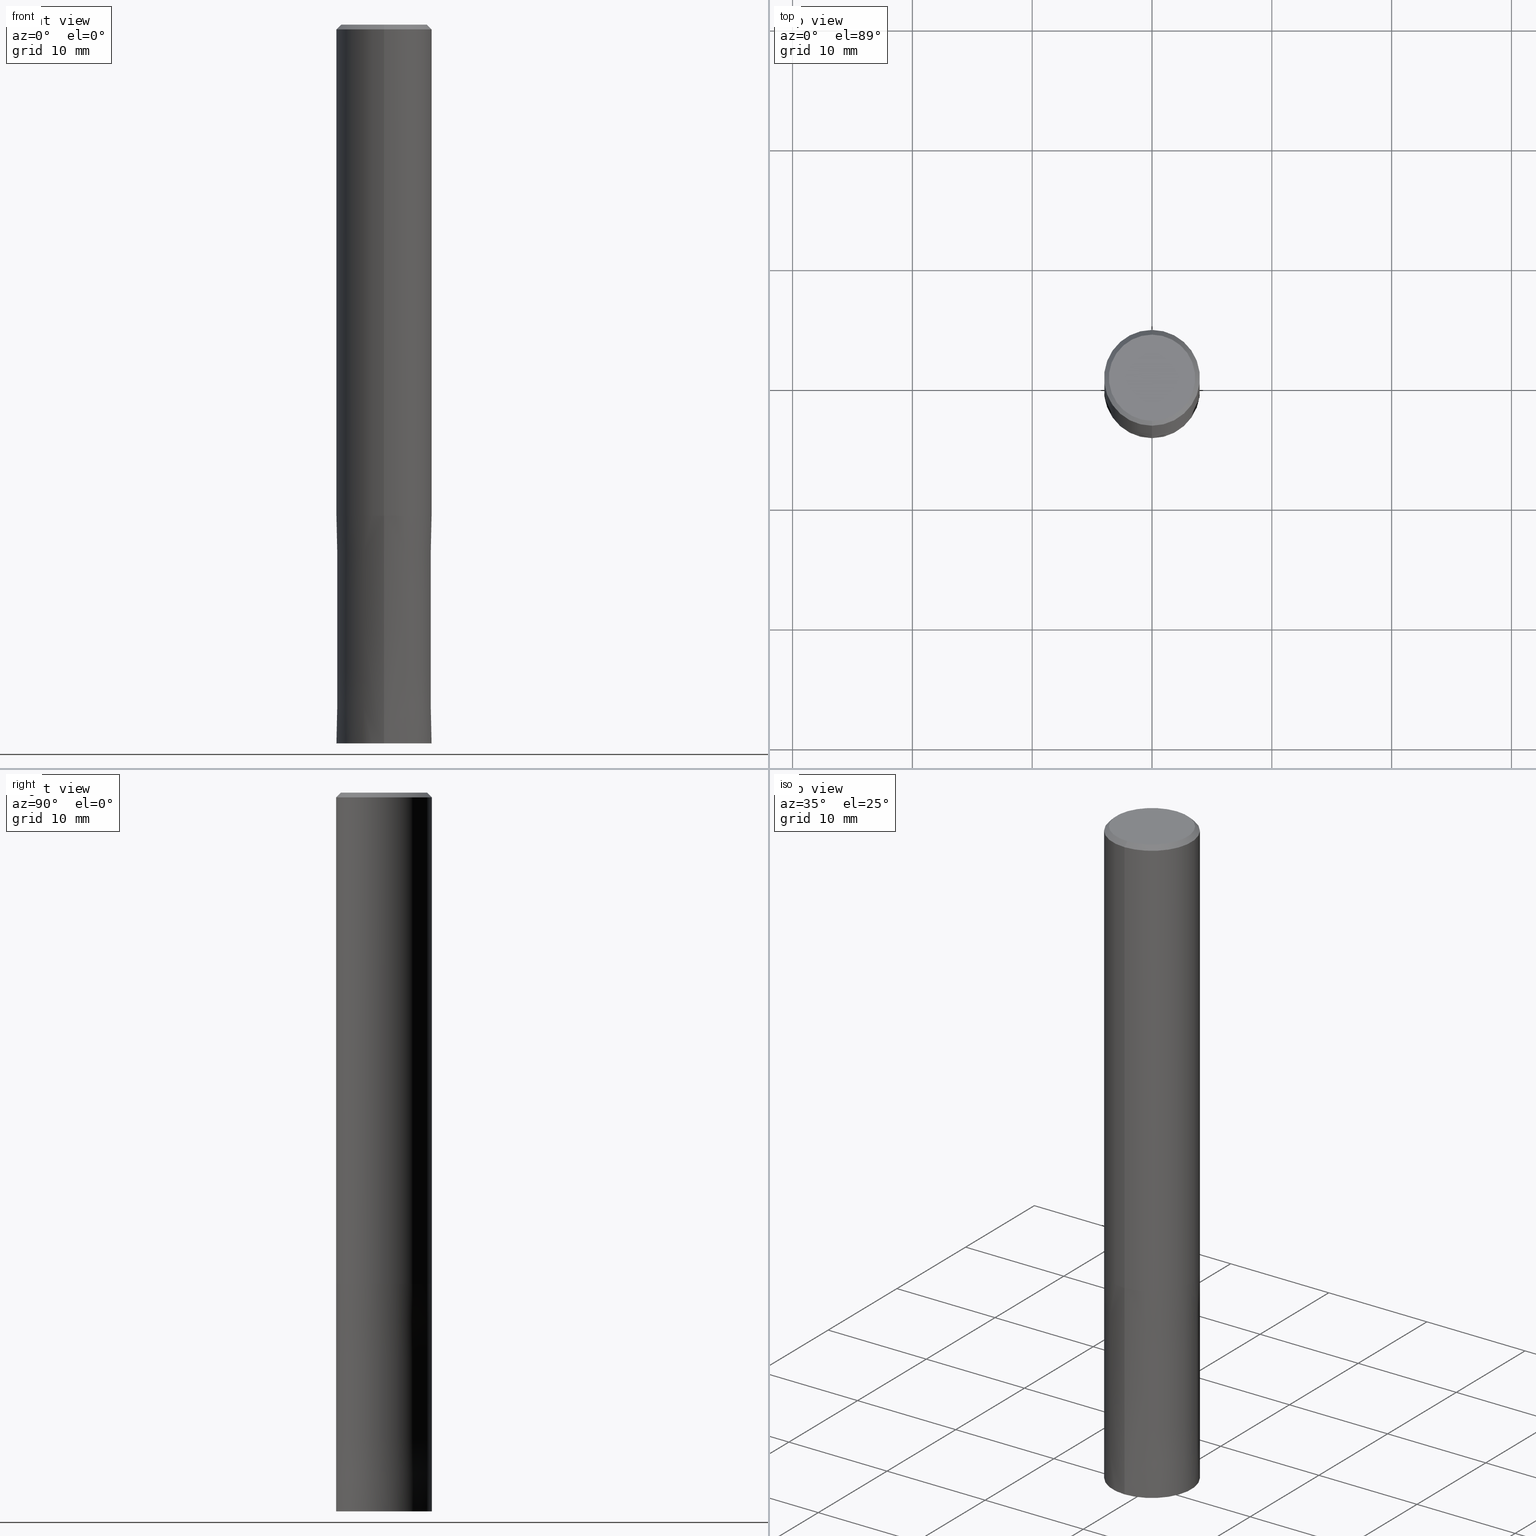
[diagram: canonical four-view strip — front | top / right | iso, engineering-drawing reading convention]
A machine part, canonical four-view strip (front | top / right | iso — engineering-drawing reading convention). The complete STEP part file that produces these views, byte-faithful:
ISO-10303-21;
HEADER;
FILE_DESCRIPTION(('no description'),'unknown implementation level');
FILE_NAME('HMS6080-1900-Huellk.stp','  ',('CIMSOURCE GmbH'),('CADClick - KiM GmbH - www.kimweb.de'),'unknown preprocess','ACIS','unknown authorization');
FILE_SCHEMA(('automotive_design'));
ENDSEC;
DATA;
#1=MECHANICAL_DESIGN_GEOMETRIC_PRESENTATION_REPRESENTATION(' ',(#14,#15,#16,#17,#18,#19,#20,#21,#22,#23,#24,#25,#26,#27,#28,#29,#30,#31,#32,#33,#34,#35,#36,#37,#38,#39,#40,#41,#42,#43,#44,#45,#46,#47,#48,#49,#50,#51,#52,#53,#54,#55,#56,#57,#58,#59,#60,#61,#62,#63,#64,#65,#66,#67,#68,#69,#70,#71,#72,#73,#74,#75,#76),#10);
#2=PRODUCT_DEFINITION_CONTEXT('',#77,'design');
#3=APPLICATION_PROTOCOL_DEFINITION('INTERNATIONAL STANDARD','automotive_design',1994,#77);
#4=PRODUCT_CATEGORY_RELATIONSHIP('NONE','NONE',#78,#79);
#5=SHAPE_DEFINITION_REPRESENTATION(#80,#81);
#6=PRODUCT_DEFINITION_CONTEXT('',#82,'design');
#7=APPLICATION_PROTOCOL_DEFINITION('INTERNATIONAL STANDARD','automotive_design',1994,#82);
#8=PRODUCT_CATEGORY_RELATIONSHIP('NONE','NONE',#83,#84);
#9=SHAPE_DEFINITION_REPRESENTATION(#85,#86);
#10= (GEOMETRIC_REPRESENTATION_CONTEXT(3)GLOBAL_UNCERTAINTY_ASSIGNED_CONTEXT((#89))GLOBAL_UNIT_ASSIGNED_CONTEXT((#91,#92,#93))REPRESENTATION_CONTEXT('NONE','WORKSPACE'));
#14=STYLED_ITEM('',(#95),#96);
#15=STYLED_ITEM('',(#97),#98);
#16=STYLED_ITEM('',(#99),#100);
#17=STYLED_ITEM('',(#101),#102);
#18=STYLED_ITEM('',(#103),#104);
#19=STYLED_ITEM('',(#105),#106);
#20=STYLED_ITEM('',(#107),#108);
#21=STYLED_ITEM('',(#109),#110);
#22=STYLED_ITEM('',(#111),#112);
#23=STYLED_ITEM('',(#113),#114);
#24=STYLED_ITEM('',(#115),#116);
#25=STYLED_ITEM('',(#117),#118);
#26=STYLED_ITEM('',(#119),#120);
#27=STYLED_ITEM('',(#121),#122);
#28=STYLED_ITEM('',(#123),#124);
#29=STYLED_ITEM('',(#125),#126);
#30=STYLED_ITEM('',(#127),#128);
#31=STYLED_ITEM('',(#129),#130);
#32=STYLED_ITEM('',(#131),#132);
#33=STYLED_ITEM('',(#133),#134);
#34=STYLED_ITEM('',(#135),#136);
#35=STYLED_ITEM('',(#137),#138);
#36=STYLED_ITEM('',(#139),#140);
#37=STYLED_ITEM('',(#141),#142);
#38=STYLED_ITEM('',(#143),#144);
#39=STYLED_ITEM('',(#145),#146);
#40=STYLED_ITEM('',(#147),#148);
#41=STYLED_ITEM('',(#149),#150);
#42=STYLED_ITEM('',(#151),#152);
#43=STYLED_ITEM('',(#153),#154);
#44=STYLED_ITEM('',(#155),#156);
#45=STYLED_ITEM('',(#157),#158);
#46=STYLED_ITEM('',(#159),#160);
#47=STYLED_ITEM('',(#161),#162);
#48=STYLED_ITEM('',(#163),#164);
#49=STYLED_ITEM('',(#165),#166);
#50=STYLED_ITEM('',(#167),#168);
#51=STYLED_ITEM('',(#169),#170);
#52=STYLED_ITEM('',(#171),#172);
#53=STYLED_ITEM('',(#173),#174);
#54=STYLED_ITEM('',(#175),#176);
#55=STYLED_ITEM('',(#177),#178);
#56=STYLED_ITEM('',(#179),#180);
#57=STYLED_ITEM('',(#181),#182);
#58=STYLED_ITEM('',(#183),#184);
#59=STYLED_ITEM('',(#185),#186);
#60=STYLED_ITEM('',(#187),#188);
#61=STYLED_ITEM('',(#189),#190);
#62=STYLED_ITEM('',(#191),#192);
#63=STYLED_ITEM('',(#193),#194);
#64=STYLED_ITEM('',(#195),#196);
#65=STYLED_ITEM('',(#197),#198);
#66=STYLED_ITEM('',(#199),#200);
#67=STYLED_ITEM('',(#201),#202);
#68=STYLED_ITEM('',(#203),#204);
#69=STYLED_ITEM('',(#205),#206);
#70=STYLED_ITEM('',(#207),#208);
#71=STYLED_ITEM('',(#209),#210);
#72=STYLED_ITEM('',(#211),#212);
#73=STYLED_ITEM('',(#213),#214);
#74=STYLED_ITEM('',(#215),#216);
#75=STYLED_ITEM('',(#217),#218);
#76=STYLED_ITEM('',(#219),#220);
#77=APPLICATION_CONTEXT(' ');
#78=PRODUCT_CATEGORY('part','NONE');
#79=PRODUCT_RELATED_PRODUCT_CATEGORY('detail',' ',(#221));
#80=PRODUCT_DEFINITION_SHAPE('NONE','NONE',#222);
#81=ADVANCED_BREP_SHAPE_REPRESENTATION('1',(#138,#223),#10);
#82=APPLICATION_CONTEXT(' ');
#83=PRODUCT_CATEGORY('part','NONE');
#84=PRODUCT_RELATED_PRODUCT_CATEGORY('detail',' ',(#224));
#85=PRODUCT_DEFINITION_SHAPE('NONE','NONE',#225);
#86=ADVANCED_BREP_SHAPE_REPRESENTATION('2',(#134,#226),#10);
#89=UNCERTAINTY_MEASURE_WITH_UNIT(LENGTH_MEASURE(1.0E-006),#91,'','');
#91= (CONVERSION_BASED_UNIT('MILLIMETRE',#229)LENGTH_UNIT()NAMED_UNIT(#232));
#92= (NAMED_UNIT(#234)PLANE_ANGLE_UNIT()SI_UNIT($,.RADIAN.));
#93= (NAMED_UNIT(#234)SOLID_ANGLE_UNIT()SI_UNIT($,.STERADIAN.));
#95=PRESENTATION_STYLE_ASSIGNMENT((#240));
#96=EDGE_CURVE('',#158,#166,#241,.T.);
#97=PRESENTATION_STYLE_ASSIGNMENT((#242));
#98=VERTEX_POINT('',#243);
#99=PRESENTATION_STYLE_ASSIGNMENT((#244));
#100=VERTEX_POINT('',#245);
#101=PRESENTATION_STYLE_ASSIGNMENT((#246));
#102=EDGE_CURVE('',#166,#178,#247,.T.);
#103=PRESENTATION_STYLE_ASSIGNMENT((#248));
#104=EDGE_CURVE('',#194,#98,#249,.T.);
#105=PRESENTATION_STYLE_ASSIGNMENT((#250));
#106=EDGE_CURVE('',#200,#212,#251,.T.);
#107=PRESENTATION_STYLE_ASSIGNMENT((#252));
#108=EDGE_CURVE('',#172,#140,#253,.T.);
#109=PRESENTATION_STYLE_ASSIGNMENT((#254));
#110=EDGE_CURVE('',#100,#218,#255,.T.);
#111=PRESENTATION_STYLE_ASSIGNMENT((#256));
#112=EDGE_CURVE('',#172,#218,#257,.T.);
#113=PRESENTATION_STYLE_ASSIGNMENT((#258));
#114=VERTEX_POINT('',#259);
#115=PRESENTATION_STYLE_ASSIGNMENT((#260));
#116=EDGE_CURVE('',#142,#158,#261,.T.);
#117=PRESENTATION_STYLE_ASSIGNMENT((#262));
#118=EDGE_CURVE('',#114,#154,#263,.T.);
#119=PRESENTATION_STYLE_ASSIGNMENT((#264));
#120=VERTEX_POINT('',#265);
#121=PRESENTATION_STYLE_ASSIGNMENT((#266));
#122=ADVANCED_FACE('',(#267),#268,.T.);
#123=PRESENTATION_STYLE_ASSIGNMENT((#269));
#124=ADVANCED_FACE('',(#270,#271),#272,.T.);
#125=PRESENTATION_STYLE_ASSIGNMENT((#273));
#126=EDGE_CURVE('',#178,#162,#274,.T.);
#127=PRESENTATION_STYLE_ASSIGNMENT((#275));
#128=EDGE_CURVE('',#200,#146,#276,.T.);
#129=PRESENTATION_STYLE_ASSIGNMENT((#277));
#130=EDGE_CURVE('',#166,#158,#278,.T.);
#131=PRESENTATION_STYLE_ASSIGNMENT((#279));
#132=EDGE_CURVE('',#210,#212,#280,.T.);
#133=PRESENTATION_STYLE_ASSIGNMENT((#281));
#134=MANIFOLD_SOLID_BREP('2',#282);
#135=PRESENTATION_STYLE_ASSIGNMENT((#283));
#136=EDGE_CURVE('',#140,#172,#284,.T.);
#137=PRESENTATION_STYLE_ASSIGNMENT((#285));
#138=MANIFOLD_SOLID_BREP('1',#286);
#139=PRESENTATION_STYLE_ASSIGNMENT((#287));
#140=VERTEX_POINT('',#288);
#141=PRESENTATION_STYLE_ASSIGNMENT((#289));
#142=VERTEX_POINT('',#290);
#143=PRESENTATION_STYLE_ASSIGNMENT((#291));
#144=ADVANCED_FACE('',(#292),#293,.F.);
#145=PRESENTATION_STYLE_ASSIGNMENT((#294));
#146=VERTEX_POINT('',#295);
#147=PRESENTATION_STYLE_ASSIGNMENT((#296));
#148=EDGE_CURVE('',#100,#140,#297,.T.);
#149=PRESENTATION_STYLE_ASSIGNMENT((#298));
#150=ADVANCED_FACE('',(#299),#300,.T.);
#151=PRESENTATION_STYLE_ASSIGNMENT((#301));
#152=ADVANCED_FACE('',(#302),#303,.T.);
#153=PRESENTATION_STYLE_ASSIGNMENT((#304));
#154=VERTEX_POINT('',#305);
#155=PRESENTATION_STYLE_ASSIGNMENT((#306));
#156=EDGE_CURVE('',#146,#200,#307,.T.);
#157=PRESENTATION_STYLE_ASSIGNMENT((#308));
#158=VERTEX_POINT('',#309);
#159=PRESENTATION_STYLE_ASSIGNMENT((#310));
#160=ADVANCED_FACE('',(#311),#312,.T.);
#161=PRESENTATION_STYLE_ASSIGNMENT((#313));
#162=VERTEX_POINT('',#314);
#163=PRESENTATION_STYLE_ASSIGNMENT((#315));
#164=EDGE_CURVE('',#114,#98,#316,.T.);
#165=PRESENTATION_STYLE_ASSIGNMENT((#317));
#166=VERTEX_POINT('',#318);
#167=PRESENTATION_STYLE_ASSIGNMENT((#319));
#168=ADVANCED_FACE('',(#320),#321,.F.);
#169=PRESENTATION_STYLE_ASSIGNMENT((#322));
#170=EDGE_CURVE('',#218,#100,#323,.T.);
#171=PRESENTATION_STYLE_ASSIGNMENT((#324));
#172=VERTEX_POINT('',#325);
#173=PRESENTATION_STYLE_ASSIGNMENT((#326));
#174=EDGE_CURVE('',#142,#178,#327,.T.);
#175=PRESENTATION_STYLE_ASSIGNMENT((#328));
#176=ADVANCED_FACE('',(#329),#330,.T.);
#177=PRESENTATION_STYLE_ASSIGNMENT((#331));
#178=VERTEX_POINT('',#332);
#179=PRESENTATION_STYLE_ASSIGNMENT((#333));
#180=EDGE_CURVE('',#154,#114,#334,.T.);
#181=PRESENTATION_STYLE_ASSIGNMENT((#335));
#182=EDGE_CURVE('',#120,#142,#336,.T.);
#183=PRESENTATION_STYLE_ASSIGNMENT((#337));
#184=ADVANCED_FACE('',(#338),#339,.T.);
#185=PRESENTATION_STYLE_ASSIGNMENT((#340));
#186=EDGE_CURVE('',#212,#210,#341,.T.);
#187=PRESENTATION_STYLE_ASSIGNMENT((#342));
#188=EDGE_CURVE('',#98,#194,#343,.T.);
#189=PRESENTATION_STYLE_ASSIGNMENT((#344));
#190=ADVANCED_FACE('',(#345),#346,.T.);
#191=PRESENTATION_STYLE_ASSIGNMENT((#347));
#192=ADVANCED_FACE('',(#348,#349),#350,.T.);
#193=PRESENTATION_STYLE_ASSIGNMENT((#351));
#194=VERTEX_POINT('',#352);
#195=PRESENTATION_STYLE_ASSIGNMENT((#353));
#196=EDGE_CURVE('',#178,#142,#354,.T.);
#197=PRESENTATION_STYLE_ASSIGNMENT((#355));
#198=EDGE_CURVE('',#210,#146,#356,.T.);
#199=PRESENTATION_STYLE_ASSIGNMENT((#357));
#200=VERTEX_POINT('',#358);
#201=PRESENTATION_STYLE_ASSIGNMENT((#359));
#202=EDGE_CURVE('',#120,#162,#360,.T.);
#203=PRESENTATION_STYLE_ASSIGNMENT((#361));
#204=ADVANCED_FACE('',(#362,#363),#364,.T.);
#205=PRESENTATION_STYLE_ASSIGNMENT((#365));
#206=EDGE_CURVE('',#194,#154,#366,.T.);
#207=PRESENTATION_STYLE_ASSIGNMENT((#367));
#208=ADVANCED_FACE('',(#368),#369,.T.);
#209=PRESENTATION_STYLE_ASSIGNMENT((#370));
#210=VERTEX_POINT('',#371);
#211=PRESENTATION_STYLE_ASSIGNMENT((#372));
#212=VERTEX_POINT('',#373);
#213=PRESENTATION_STYLE_ASSIGNMENT((#374));
#214=ADVANCED_FACE('',(#375),#376,.T.);
#215=PRESENTATION_STYLE_ASSIGNMENT((#377));
#216=EDGE_CURVE('',#162,#120,#378,.T.);
#217=PRESENTATION_STYLE_ASSIGNMENT((#379));
#218=VERTEX_POINT('',#380);
#219=PRESENTATION_STYLE_ASSIGNMENT((#381));
#220=ADVANCED_FACE('',(#382),#383,.T.);
#221=PRODUCT('1','1','PART-1-DESC',(#384));
#222=PRODUCT_DEFINITION('NONE','NONE',#385,#2);
#223=AXIS2_PLACEMENT_3D('',#386,#387,#388);
#224=PRODUCT('2','2','PART-2-DESC',(#389));
#225=PRODUCT_DEFINITION('NONE','NONE',#390,#6);
#226=AXIS2_PLACEMENT_3D('',#391,#392,#393);
#229=LENGTH_MEASURE_WITH_UNIT(LENGTH_MEASURE(1.0),#394);
#232=DIMENSIONAL_EXPONENTS(1.0,0.0,0.0,0.0,0.0,0.0,0.0);
#234=DIMENSIONAL_EXPONENTS(0.0,0.0,0.0,0.0,0.0,0.0,0.0);
#240=CURVE_STYLE('',#395,POSITIVE_LENGTH_MEASURE(1.0E-006),#396);
#241=CIRCLE('',#397,4.0);
#242=POINT_STYLE(' ',#398,POSITIVE_LENGTH_MEASURE(1.0E-006),#399);
#243=CARTESIAN_POINT('',(2.20429143688028E-016,-1.8,-41.0));
#244=POINT_STYLE(' ',#400,POSITIVE_LENGTH_MEASURE(1.0E-006),#401);
#245=CARTESIAN_POINT('',(4.89842541528951E-016,-4.0,-60.0));
#246=CURVE_STYLE('',#402,POSITIVE_LENGTH_MEASURE(1.0E-006),#403);
#247=LINE('',#404,#405);
#248=CURVE_STYLE('',#406,POSITIVE_LENGTH_MEASURE(1.0E-006),#407);
#249=CIRCLE('',#408,1.8);
#250=CURVE_STYLE('',#409,POSITIVE_LENGTH_MEASURE(1.0E-006),#410);
#251=LINE('',#411,#412);
#252=CURVE_STYLE('',#413,POSITIVE_LENGTH_MEASURE(1.0E-006),#414);
#253=CIRCLE('',#415,3.9999);
#254=CURVE_STYLE('',#416,POSITIVE_LENGTH_MEASURE(1.0E-006),#417);
#255=CIRCLE('',#418,4.0);
#256=CURVE_STYLE('',#419,POSITIVE_LENGTH_MEASURE(1.0E-006),#420);
#257=LINE('',#421,#422);
#258=POINT_STYLE(' ',#423,POSITIVE_LENGTH_MEASURE(1.0E-006),#424);
#259=CARTESIAN_POINT('',(2.20429143688028E-016,-1.8,-59.9));
#260=CURVE_STYLE('',#425,POSITIVE_LENGTH_MEASURE(1.0E-006),#426);
#261=LINE('',#427,#428);
#262=CURVE_STYLE('',#429,POSITIVE_LENGTH_MEASURE(1.0E-006),#430);
#263=CIRCLE('',#431,1.8);
#264=POINT_STYLE(' ',#432,POSITIVE_LENGTH_MEASURE(1.0E-006),#433);
#265=CARTESIAN_POINT('',(0.0,3.6,0.0));
#266=SURFACE_STYLE_USAGE(.BOTH.,#434);
#267=FACE_OUTER_BOUND('',#435,.T.);
#268=PLANE('',#436);
#269=SURFACE_STYLE_USAGE(.BOTH.,#437);
#270=FACE_OUTER_BOUND('',#438,.T.);
#271=FACE_BOUND('',#439,.T.);
#272=PLANE('',#440);
#273=CURVE_STYLE('',#441,POSITIVE_LENGTH_MEASURE(1.0E-006),#442);
#274=LINE('',#443,#444);
#275=CURVE_STYLE('',#445,POSITIVE_LENGTH_MEASURE(1.0E-006),#446);
#276=CIRCLE('',#447,1.8);
#277=CURVE_STYLE('',#448,POSITIVE_LENGTH_MEASURE(1.0E-006),#449);
#278=CIRCLE('',#450,4.0);
#279=CURVE_STYLE('',#451,POSITIVE_LENGTH_MEASURE(1.0E-006),#452);
#280=CIRCLE('',#453,1.8);
#281=SURFACE_STYLE_USAGE(.BOTH.,#454);
#282=CLOSED_SHELL('',(#144,#220,#192,#184,#204,#168));
#283=CURVE_STYLE('',#455,POSITIVE_LENGTH_MEASURE(1.0E-006),#456);
#284=CIRCLE('',#457,3.9999);
#285=SURFACE_STYLE_USAGE(.BOTH.,#458);
#286=CLOSED_SHELL('',(#190,#152,#214,#124,#160,#150,#208,#176,#122));
#287=POINT_STYLE(' ',#459,POSITIVE_LENGTH_MEASURE(1.0E-006),#460);
#288=CARTESIAN_POINT('',(4.89830295465413E-016,-3.9999,-41.0));
#289=POINT_STYLE(' ',#461,POSITIVE_LENGTH_MEASURE(1.0E-006),#462);
#290=CARTESIAN_POINT('',(0.0,4.0,-0.399999999999999));
#291=SURFACE_STYLE_USAGE(.BOTH.,#463);
#292=FACE_OUTER_BOUND('',#464,.T.);
#293=CYLINDRICAL_SURFACE('',#465,1.8);
#294=POINT_STYLE(' ',#466,POSITIVE_LENGTH_MEASURE(1.0E-006),#467);
#295=CARTESIAN_POINT('',(0.0,1.8,-60.0));
#296=CURVE_STYLE('',#468,POSITIVE_LENGTH_MEASURE(1.0E-006),#469);
#297=LINE('',#470,#471);
#298=SURFACE_STYLE_USAGE(.BOTH.,#472);
#299=FACE_OUTER_BOUND('',#473,.T.);
#300=CONICAL_SURFACE('',#474,3.8,0.78539816339745);
#301=SURFACE_STYLE_USAGE(.BOTH.,#475);
#302=FACE_OUTER_BOUND('',#476,.T.);
#303=CYLINDRICAL_SURFACE('',#477,4.0);
#304=POINT_STYLE(' ',#478,POSITIVE_LENGTH_MEASURE(1.0E-006),#479);
#305=CARTESIAN_POINT('',(0.0,1.8,-59.9));
#306=CURVE_STYLE('',#480,POSITIVE_LENGTH_MEASURE(1.0E-006),#481);
#307=CIRCLE('',#482,1.8);
#308=POINT_STYLE(' ',#483,POSITIVE_LENGTH_MEASURE(1.0E-006),#484);
#309=CARTESIAN_POINT('',(0.0,4.0,-41.0));
#310=SURFACE_STYLE_USAGE(.BOTH.,#485);
#311=FACE_OUTER_BOUND('',#486,.T.);
#312=PLANE('',#487);
#313=POINT_STYLE(' ',#488,POSITIVE_LENGTH_MEASURE(1.0E-006),#489);
#314=CARTESIAN_POINT('',(4.40858287376056E-016,-3.6,0.0));
#315=CURVE_STYLE('',#490,POSITIVE_LENGTH_MEASURE(1.0E-006),#491);
#316=LINE('',#492,#493);
#317=POINT_STYLE(' ',#494,POSITIVE_LENGTH_MEASURE(1.0E-006),#495);
#318=CARTESIAN_POINT('',(4.89842541528951E-016,-4.0,-41.0));
#319=SURFACE_STYLE_USAGE(.BOTH.,#496);
#320=FACE_OUTER_BOUND('',#497,.T.);
#321=CYLINDRICAL_SURFACE('',#498,1.8);
#322=CURVE_STYLE('',#499,POSITIVE_LENGTH_MEASURE(1.0E-006),#500);
#323=CIRCLE('',#501,4.0);
#324=POINT_STYLE(' ',#502,POSITIVE_LENGTH_MEASURE(1.0E-006),#503);
#325=CARTESIAN_POINT('',(0.0,3.9999,-41.0));
#326=CURVE_STYLE('',#504,POSITIVE_LENGTH_MEASURE(1.0E-006),#505);
#327=CIRCLE('',#506,4.0);
#328=SURFACE_STYLE_USAGE(.BOTH.,#507);
#329=FACE_OUTER_BOUND('',#508,.T.);
#330=CYLINDRICAL_SURFACE('',#509,1.8);
#331=POINT_STYLE(' ',#510,POSITIVE_LENGTH_MEASURE(1.0E-006),#511);
#332=CARTESIAN_POINT('',(4.89842541528951E-016,-4.0,-0.399999999999999));
#333=CURVE_STYLE('',#512,POSITIVE_LENGTH_MEASURE(1.0E-006),#513);
#334=CIRCLE('',#514,1.8);
#335=CURVE_STYLE('',#515,POSITIVE_LENGTH_MEASURE(1.0E-006),#516);
#336=LINE('',#517,#518);
#337=SURFACE_STYLE_USAGE(.BOTH.,#519);
#338=FACE_OUTER_BOUND('',#520,.T.);
#339=CONICAL_SURFACE('',#521,3.99995,5.26315789469935E-006);
#340=CURVE_STYLE('',#522,POSITIVE_LENGTH_MEASURE(1.0E-006),#523);
#341=CIRCLE('',#524,1.8);
#342=CURVE_STYLE('',#525,POSITIVE_LENGTH_MEASURE(1.0E-006),#526);
#343=CIRCLE('',#527,1.8);
#344=SURFACE_STYLE_USAGE(.BOTH.,#528);
#345=FACE_OUTER_BOUND('',#529,.T.);
#346=CYLINDRICAL_SURFACE('',#530,1.8);
#347=SURFACE_STYLE_USAGE(.BOTH.,#531);
#348=FACE_OUTER_BOUND('',#532,.T.);
#349=FACE_BOUND('',#533,.T.);
#350=PLANE('',#534);
#351=POINT_STYLE(' ',#535,POSITIVE_LENGTH_MEASURE(1.0E-006),#536);
#352=CARTESIAN_POINT('',(0.0,1.8,-41.0));
#353=CURVE_STYLE('',#537,POSITIVE_LENGTH_MEASURE(1.0E-006),#538);
#354=CIRCLE('',#539,4.0);
#355=CURVE_STYLE('',#540,POSITIVE_LENGTH_MEASURE(1.0E-006),#541);
#356=LINE('',#542,#543);
#357=POINT_STYLE(' ',#544,POSITIVE_LENGTH_MEASURE(1.0E-006),#545);
#358=CARTESIAN_POINT('',(2.20429143688028E-016,-1.8,-60.0));
#359=CURVE_STYLE('',#546,POSITIVE_LENGTH_MEASURE(1.0E-006),#547);
#360=CIRCLE('',#548,3.6);
#361=SURFACE_STYLE_USAGE(.BOTH.,#549);
#362=FACE_OUTER_BOUND('',#550,.T.);
#363=FACE_BOUND('',#551,.T.);
#364=PLANE('',#552);
#365=CURVE_STYLE('',#553,POSITIVE_LENGTH_MEASURE(1.0E-006),#554);
#366=LINE('',#555,#556);
#367=SURFACE_STYLE_USAGE(.BOTH.,#557);
#368=FACE_OUTER_BOUND('',#558,.T.);
#369=CYLINDRICAL_SURFACE('',#559,4.0);
#370=POINT_STYLE(' ',#560,POSITIVE_LENGTH_MEASURE(1.0E-006),#561);
#371=CARTESIAN_POINT('',(0.0,1.8,-41.0));
#372=POINT_STYLE(' ',#562,POSITIVE_LENGTH_MEASURE(1.0E-006),#563);
#373=CARTESIAN_POINT('',(2.20429143688028E-016,-1.8,-41.0));
#374=SURFACE_STYLE_USAGE(.BOTH.,#564);
#375=FACE_OUTER_BOUND('',#565,.T.);
#376=CONICAL_SURFACE('',#566,3.8,0.78539816339745);
#377=CURVE_STYLE('',#567,POSITIVE_LENGTH_MEASURE(1.0E-006),#568);
#378=CIRCLE('',#569,3.6);
#379=POINT_STYLE(' ',#570,POSITIVE_LENGTH_MEASURE(1.0E-006),#571);
#380=CARTESIAN_POINT('',(0.0,4.0,-60.0));
#381=SURFACE_STYLE_USAGE(.BOTH.,#572);
#382=FACE_OUTER_BOUND('',#573,.T.);
#383=CONICAL_SURFACE('',#574,3.99995,5.26315789469935E-006);
#384=PRODUCT_CONTEXT('',#77,'mechanical');
#385=PRODUCT_DEFINITION_FORMATION_WITH_SPECIFIED_SOURCE(' ','NONE',#221,.NOT_KNOWN.);
#386=CARTESIAN_POINT('',(0.0,0.0,0.0));
#387=DIRECTION('',(0.0,0.0,1.0));
#388=DIRECTION('',(1.0,0.0,0.0));
#389=PRODUCT_CONTEXT('',#82,'mechanical');
#390=PRODUCT_DEFINITION_FORMATION_WITH_SPECIFIED_SOURCE(' ','NONE',#224,.NOT_KNOWN.);
#391=CARTESIAN_POINT('',(0.0,0.0,0.0));
#392=DIRECTION('',(0.0,0.0,1.0));
#393=DIRECTION('',(1.0,0.0,0.0));
#394= (NAMED_UNIT(#232)LENGTH_UNIT()SI_UNIT(.MILLI.,.METRE.));
#395=DRAUGHTING_PRE_DEFINED_CURVE_FONT('continuous');
#396=COLOUR_RGB('',0.498039215803146,0.498039215803146,0.498039215803146);
#397=AXIS2_PLACEMENT_3D('',#576,#577,#578);
#398=PRE_DEFINED_MARKER('');
#399=COLOUR_RGB('',0.498039215803146,0.498039215803146,0.498039215803146);
#400=PRE_DEFINED_MARKER('');
#401=COLOUR_RGB('',0.800000011920929,0.800000011920929,0.800000011920929);
#402=DRAUGHTING_PRE_DEFINED_CURVE_FONT('continuous');
#403=COLOUR_RGB('',0.498039215803146,0.498039215803146,0.498039215803146);
#404=CARTESIAN_POINT('',(4.89842541528951E-016,-4.0,-20.7));
#405=VECTOR('',#579,1.0);
#406=DRAUGHTING_PRE_DEFINED_CURVE_FONT('continuous');
#407=COLOUR_RGB('',0.498039215803146,0.498039215803146,0.498039215803146);
#408=AXIS2_PLACEMENT_3D('',#580,#581,#582);
#409=DRAUGHTING_PRE_DEFINED_CURVE_FONT('continuous');
#410=COLOUR_RGB('',0.800000011920929,0.800000011920929,0.800000011920929);
#411=CARTESIAN_POINT('',(2.20429143688028E-016,-1.8,-50.5));
#412=VECTOR('',#583,1.0);
#413=DRAUGHTING_PRE_DEFINED_CURVE_FONT('continuous');
#414=COLOUR_RGB('',0.800000011920929,0.800000011920929,0.800000011920929);
#415=AXIS2_PLACEMENT_3D('',#584,#585,#586);
#416=DRAUGHTING_PRE_DEFINED_CURVE_FONT('continuous');
#417=COLOUR_RGB('',0.800000011920929,0.800000011920929,0.800000011920929);
#418=AXIS2_PLACEMENT_3D('',#587,#588,#589);
#419=DRAUGHTING_PRE_DEFINED_CURVE_FONT('continuous');
#420=COLOUR_RGB('',0.800000011920929,0.800000011920929,0.800000011920929);
#421=CARTESIAN_POINT('',(-4.89836418497182E-016,3.99995,-50.5));
#422=VECTOR('',#590,1.0);
#423=PRE_DEFINED_MARKER('');
#424=COLOUR_RGB('',0.498039215803146,0.498039215803146,0.498039215803146);
#425=DRAUGHTING_PRE_DEFINED_CURVE_FONT('continuous');
#426=COLOUR_RGB('',0.498039215803146,0.498039215803146,0.498039215803146);
#427=CARTESIAN_POINT('',(-4.89842541528951E-016,4.0,-20.7));
#428=VECTOR('',#591,1.0);
#429=DRAUGHTING_PRE_DEFINED_CURVE_FONT('continuous');
#430=COLOUR_RGB('',0.498039215803146,0.498039215803146,0.498039215803146);
#431=AXIS2_PLACEMENT_3D('',#592,#593,#594);
#432=PRE_DEFINED_MARKER('');
#433=COLOUR_RGB('',0.498039215803146,0.498039215803146,0.498039215803146);
#434=SURFACE_SIDE_STYLE('',(#595));
#435=EDGE_LOOP('',(#596,#597));
#436=AXIS2_PLACEMENT_3D('',#598,#599,#600);
#437=SURFACE_SIDE_STYLE('',(#601));
#438=EDGE_LOOP('',(#602,#603));
#439=EDGE_LOOP('',(#604,#605));
#440=AXIS2_PLACEMENT_3D('',#606,#607,#608);
#441=DRAUGHTING_PRE_DEFINED_CURVE_FONT('continuous');
#442=COLOUR_RGB('',0.498039215803146,0.498039215803146,0.498039215803146);
#443=CARTESIAN_POINT('',(4.65350414452503E-016,-3.8,-0.200000000000003));
#444=VECTOR('',#609,1.0);
#445=DRAUGHTING_PRE_DEFINED_CURVE_FONT('continuous');
#446=COLOUR_RGB('',0.800000011920929,0.800000011920929,0.800000011920929);
#447=AXIS2_PLACEMENT_3D('',#610,#611,#612);
#448=DRAUGHTING_PRE_DEFINED_CURVE_FONT('continuous');
#449=COLOUR_RGB('',0.498039215803146,0.498039215803146,0.498039215803146);
#450=AXIS2_PLACEMENT_3D('',#613,#614,#615);
#451=DRAUGHTING_PRE_DEFINED_CURVE_FONT('continuous');
#452=COLOUR_RGB('',0.800000011920929,0.800000011920929,0.800000011920929);
#453=AXIS2_PLACEMENT_3D('',#616,#617,#618);
#454=SURFACE_SIDE_STYLE('',(#619));
#455=DRAUGHTING_PRE_DEFINED_CURVE_FONT('continuous');
#456=COLOUR_RGB('',0.800000011920929,0.800000011920929,0.800000011920929);
#457=AXIS2_PLACEMENT_3D('',#620,#621,#622);
#458=SURFACE_SIDE_STYLE('',(#623));
#459=PRE_DEFINED_MARKER('');
#460=COLOUR_RGB('',0.800000011920929,0.800000011920929,0.800000011920929);
#461=PRE_DEFINED_MARKER('');
#462=COLOUR_RGB('',0.498039215803146,0.498039215803146,0.498039215803146);
#463=SURFACE_SIDE_STYLE('',(#624));
#464=EDGE_LOOP('',(#625,#626,#627,#628));
#465=AXIS2_PLACEMENT_3D('',#629,#630,#631);
#466=PRE_DEFINED_MARKER('');
#467=COLOUR_RGB('',0.800000011920929,0.800000011920929,0.800000011920929);
#468=DRAUGHTING_PRE_DEFINED_CURVE_FONT('continuous');
#469=COLOUR_RGB('',0.800000011920929,0.800000011920929,0.800000011920929);
#470=CARTESIAN_POINT('',(4.89836418497182E-016,-3.99995,-50.5));
#471=VECTOR('',#632,1.0);
#472=SURFACE_SIDE_STYLE('',(#633));
#473=EDGE_LOOP('',(#634,#635,#636,#637));
#474=AXIS2_PLACEMENT_3D('',#638,#639,#640);
#475=SURFACE_SIDE_STYLE('',(#641));
#476=EDGE_LOOP('',(#642,#643,#644,#645));
#477=AXIS2_PLACEMENT_3D('',#646,#647,#648);
#478=PRE_DEFINED_MARKER('');
#479=COLOUR_RGB('',0.498039215803146,0.498039215803146,0.498039215803146);
#480=DRAUGHTING_PRE_DEFINED_CURVE_FONT('continuous');
#481=COLOUR_RGB('',0.800000011920929,0.800000011920929,0.800000011920929);
#482=AXIS2_PLACEMENT_3D('',#649,#650,#651);
#483=PRE_DEFINED_MARKER('');
#484=COLOUR_RGB('',0.498039215803146,0.498039215803146,0.498039215803146);
#485=SURFACE_SIDE_STYLE('',(#652));
#486=EDGE_LOOP('',(#653,#654));
#487=AXIS2_PLACEMENT_3D('',#655,#656,#657);
#488=PRE_DEFINED_MARKER('');
#489=COLOUR_RGB('',0.498039215803146,0.498039215803146,0.498039215803146);
#490=DRAUGHTING_PRE_DEFINED_CURVE_FONT('continuous');
#491=COLOUR_RGB('',0.498039215803146,0.498039215803146,0.498039215803146);
#492=CARTESIAN_POINT('',(2.20429143688028E-016,-1.8,-50.45));
#493=VECTOR('',#658,1.0);
#494=PRE_DEFINED_MARKER('');
#495=COLOUR_RGB('',0.498039215803146,0.498039215803146,0.498039215803146);
#496=SURFACE_SIDE_STYLE('',(#659));
#497=EDGE_LOOP('',(#660,#661,#662,#663));
#498=AXIS2_PLACEMENT_3D('',#664,#665,#666);
#499=DRAUGHTING_PRE_DEFINED_CURVE_FONT('continuous');
#500=COLOUR_RGB('',0.800000011920929,0.800000011920929,0.800000011920929);
#501=AXIS2_PLACEMENT_3D('',#667,#668,#669);
#502=PRE_DEFINED_MARKER('');
#503=COLOUR_RGB('',0.800000011920929,0.800000011920929,0.800000011920929);
#504=DRAUGHTING_PRE_DEFINED_CURVE_FONT('continuous');
#505=COLOUR_RGB('',0.498039215803146,0.498039215803146,0.498039215803146);
#506=AXIS2_PLACEMENT_3D('',#670,#671,#672);
#507=SURFACE_SIDE_STYLE('',(#673));
#508=EDGE_LOOP('',(#674,#675,#676,#677));
#509=AXIS2_PLACEMENT_3D('',#678,#679,#680);
#510=PRE_DEFINED_MARKER('');
#511=COLOUR_RGB('',0.498039215803146,0.498039215803146,0.498039215803146);
#512=DRAUGHTING_PRE_DEFINED_CURVE_FONT('continuous');
#513=COLOUR_RGB('',0.498039215803146,0.498039215803146,0.498039215803146);
#514=AXIS2_PLACEMENT_3D('',#681,#682,#683);
#515=DRAUGHTING_PRE_DEFINED_CURVE_FONT('continuous');
#516=COLOUR_RGB('',0.498039215803146,0.498039215803146,0.498039215803146);
#517=CARTESIAN_POINT('',(-4.65350414452503E-016,3.8,-0.200000000000003));
#518=VECTOR('',#684,1.0);
#519=SURFACE_SIDE_STYLE('',(#685));
#520=EDGE_LOOP('',(#686,#687,#688,#689));
#521=AXIS2_PLACEMENT_3D('',#690,#691,#692);
#522=DRAUGHTING_PRE_DEFINED_CURVE_FONT('continuous');
#523=COLOUR_RGB('',0.800000011920929,0.800000011920929,0.800000011920929);
#524=AXIS2_PLACEMENT_3D('',#693,#694,#695);
#525=DRAUGHTING_PRE_DEFINED_CURVE_FONT('continuous');
#526=COLOUR_RGB('',0.498039215803146,0.498039215803146,0.498039215803146);
#527=AXIS2_PLACEMENT_3D('',#696,#697,#698);
#528=SURFACE_SIDE_STYLE('',(#699));
#529=EDGE_LOOP('',(#700,#701,#702,#703));
#530=AXIS2_PLACEMENT_3D('',#704,#705,#706);
#531=SURFACE_SIDE_STYLE('',(#707));
#532=EDGE_LOOP('',(#708,#709));
#533=EDGE_LOOP('',(#710,#711));
#534=AXIS2_PLACEMENT_3D('',#712,#713,#714);
#535=PRE_DEFINED_MARKER('');
#536=COLOUR_RGB('',0.498039215803146,0.498039215803146,0.498039215803146);
#537=DRAUGHTING_PRE_DEFINED_CURVE_FONT('continuous');
#538=COLOUR_RGB('',0.498039215803146,0.498039215803146,0.498039215803146);
#539=AXIS2_PLACEMENT_3D('',#715,#716,#717);
#540=DRAUGHTING_PRE_DEFINED_CURVE_FONT('continuous');
#541=COLOUR_RGB('',0.800000011920929,0.800000011920929,0.800000011920929);
#542=CARTESIAN_POINT('',(-2.20429143688028E-016,1.8,-50.5));
#543=VECTOR('',#718,1.0);
#544=PRE_DEFINED_MARKER('');
#545=COLOUR_RGB('',0.800000011920929,0.800000011920929,0.800000011920929);
#546=DRAUGHTING_PRE_DEFINED_CURVE_FONT('continuous');
#547=COLOUR_RGB('',0.498039215803146,0.498039215803146,0.498039215803146);
#548=AXIS2_PLACEMENT_3D('',#719,#720,#721);
#549=SURFACE_SIDE_STYLE('',(#722));
#550=EDGE_LOOP('',(#723,#724));
#551=EDGE_LOOP('',(#725,#726));
#552=AXIS2_PLACEMENT_3D('',#727,#728,#729);
#553=DRAUGHTING_PRE_DEFINED_CURVE_FONT('continuous');
#554=COLOUR_RGB('',0.498039215803146,0.498039215803146,0.498039215803146);
#555=CARTESIAN_POINT('',(-2.20429143688028E-016,1.8,-50.45));
#556=VECTOR('',#730,1.0);
#557=SURFACE_SIDE_STYLE('',(#731));
#558=EDGE_LOOP('',(#732,#733,#734,#735));
#559=AXIS2_PLACEMENT_3D('',#736,#737,#738);
#560=PRE_DEFINED_MARKER('');
#561=COLOUR_RGB('',0.800000011920929,0.800000011920929,0.800000011920929);
#562=PRE_DEFINED_MARKER('');
#563=COLOUR_RGB('',0.800000011920929,0.800000011920929,0.800000011920929);
#564=SURFACE_SIDE_STYLE('',(#739));
#565=EDGE_LOOP('',(#740,#741,#742,#743));
#566=AXIS2_PLACEMENT_3D('',#744,#745,#746);
#567=DRAUGHTING_PRE_DEFINED_CURVE_FONT('continuous');
#568=COLOUR_RGB('',0.498039215803146,0.498039215803146,0.498039215803146);
#569=AXIS2_PLACEMENT_3D('',#747,#748,#749);
#570=PRE_DEFINED_MARKER('');
#571=COLOUR_RGB('',0.800000011920929,0.800000011920929,0.800000011920929);
#572=SURFACE_SIDE_STYLE('',(#750));
#573=EDGE_LOOP('',(#751,#752,#753,#754));
#574=AXIS2_PLACEMENT_3D('',#755,#756,#757);
#576=CARTESIAN_POINT('',(0.0,0.0,-41.0));
#577=DIRECTION('',(0.0,0.0,-1.0));
#578=DIRECTION('',(0.0,1.0,0.0));
#579=DIRECTION('',(-0.0,-0.0,1.0));
#580=CARTESIAN_POINT('',(0.0,0.0,-41.0));
#581=DIRECTION('',(0.0,0.0,-1.0));
#582=DIRECTION('',(0.0,1.0,0.0));
#583=DIRECTION('',(0.0,-0.0,1.0));
#584=CARTESIAN_POINT('',(0.0,0.0,-41.0));
#585=DIRECTION('',(0.0,0.0,-1.0));
#586=DIRECTION('',(0.0,1.0,0.0));
#587=CARTESIAN_POINT('',(0.0,0.0,-60.0));
#588=DIRECTION('',(0.0,0.0,-1.0));
#589=DIRECTION('',(0.0,1.0,0.0));
#590=DIRECTION('',(-6.44529659898948E-022,5.26315789467505E-006,-0.99999999998615));
#591=DIRECTION('',(0.0,0.0,-1.0));
#592=CARTESIAN_POINT('',(0.0,0.0,-59.9));
#593=DIRECTION('',(0.0,0.0,-1.0));
#594=DIRECTION('',(0.0,1.0,0.0));
#595=SURFACE_STYLE_FILL_AREA(#758);
#596=ORIENTED_EDGE('',*,*,#180,.T.);
#597=ORIENTED_EDGE('',*,*,#118,.T.);
#598=CARTESIAN_POINT('',(0.0,0.9,-59.9));
#599=DIRECTION('',(0.0,0.0,-1.0));
#600=DIRECTION('',(0.0,1.0,0.0));
#601=SURFACE_STYLE_FILL_AREA(#759);
#602=ORIENTED_EDGE('',*,*,#96,.T.);
#603=ORIENTED_EDGE('',*,*,#130,.T.);
#604=ORIENTED_EDGE('',*,*,#104,.F.);
#605=ORIENTED_EDGE('',*,*,#188,.F.);
#606=CARTESIAN_POINT('',(0.0,2.0,-41.0));
#607=DIRECTION('',(0.0,0.0,-1.0));
#608=DIRECTION('',(0.0,1.0,0.0));
#609=DIRECTION('',(-8.65927457071937E-017,0.707106781186549,0.707106781186546));
#610=CARTESIAN_POINT('',(0.0,0.0,-60.0));
#611=DIRECTION('',(0.0,0.0,-1.0));
#612=DIRECTION('',(0.0,1.0,0.0));
#613=CARTESIAN_POINT('',(0.0,0.0,-41.0));
#614=DIRECTION('',(0.0,0.0,-1.0));
#615=DIRECTION('',(0.0,1.0,0.0));
#616=CARTESIAN_POINT('',(0.0,0.0,-41.0));
#617=DIRECTION('',(0.0,0.0,-1.0));
#618=DIRECTION('',(0.0,1.0,0.0));
#619=SURFACE_STYLE_FILL_AREA(#760);
#620=CARTESIAN_POINT('',(0.0,0.0,-41.0));
#621=DIRECTION('',(0.0,0.0,-1.0));
#622=DIRECTION('',(0.0,1.0,0.0));
#623=SURFACE_STYLE_FILL_AREA(#761);
#624=SURFACE_STYLE_FILL_AREA(#762);
#625=ORIENTED_EDGE('',*,*,#198,.F.);
#626=ORIENTED_EDGE('',*,*,#186,.F.);
#627=ORIENTED_EDGE('',*,*,#106,.F.);
#628=ORIENTED_EDGE('',*,*,#128,.T.);
#629=CARTESIAN_POINT('',(0.0,0.0,-50.5));
#630=DIRECTION('',(-0.0,-0.0,1.0));
#631=DIRECTION('',(0.0,1.0,0.0));
#632=DIRECTION('',(-6.44529659898947E-022,5.26315789467505E-006,0.99999999998615));
#633=SURFACE_STYLE_FILL_AREA(#763);
#634=ORIENTED_EDGE('',*,*,#182,.T.);
#635=ORIENTED_EDGE('',*,*,#196,.F.);
#636=ORIENTED_EDGE('',*,*,#126,.T.);
#637=ORIENTED_EDGE('',*,*,#216,.T.);
#638=CARTESIAN_POINT('',(0.0,0.0,-0.200000000000003));
#639=DIRECTION('',(0.0,-0.0,-1.0));
#640=DIRECTION('',(0.0,1.0,0.0));
#641=SURFACE_STYLE_FILL_AREA(#764);
#642=ORIENTED_EDGE('',*,*,#116,.F.);
#643=ORIENTED_EDGE('',*,*,#174,.T.);
#644=ORIENTED_EDGE('',*,*,#102,.F.);
#645=ORIENTED_EDGE('',*,*,#96,.F.);
#646=CARTESIAN_POINT('',(0.0,0.0,-20.7));
#647=DIRECTION('',(-0.0,-0.0,1.0));
#648=DIRECTION('',(0.0,1.0,0.0));
#649=CARTESIAN_POINT('',(0.0,0.0,-60.0));
#650=DIRECTION('',(0.0,0.0,-1.0));
#651=DIRECTION('',(0.0,1.0,0.0));
#652=SURFACE_STYLE_FILL_AREA(#765);
#653=ORIENTED_EDGE('',*,*,#202,.F.);
#654=ORIENTED_EDGE('',*,*,#216,.F.);
#655=CARTESIAN_POINT('',(0.0,1.8,0.0));
#656=DIRECTION('',(-0.0,0.0,1.0));
#657=DIRECTION('',(0.0,-1.0,0.0));
#658=DIRECTION('',(-0.0,-0.0,1.0));
#659=SURFACE_STYLE_FILL_AREA(#766);
#660=ORIENTED_EDGE('',*,*,#198,.T.);
#661=ORIENTED_EDGE('',*,*,#156,.T.);
#662=ORIENTED_EDGE('',*,*,#106,.T.);
#663=ORIENTED_EDGE('',*,*,#132,.F.);
#664=CARTESIAN_POINT('',(0.0,0.0,-50.5));
#665=DIRECTION('',(-0.0,-0.0,1.0));
#666=DIRECTION('',(0.0,1.0,0.0));
#667=CARTESIAN_POINT('',(0.0,0.0,-60.0));
#668=DIRECTION('',(0.0,0.0,-1.0));
#669=DIRECTION('',(0.0,1.0,0.0));
#670=CARTESIAN_POINT('',(0.0,0.0,-0.399999999999999));
#671=DIRECTION('',(0.0,0.0,-1.0));
#672=DIRECTION('',(0.0,1.0,0.0));
#673=SURFACE_STYLE_FILL_AREA(#767);
#674=ORIENTED_EDGE('',*,*,#206,.T.);
#675=ORIENTED_EDGE('',*,*,#118,.F.);
#676=ORIENTED_EDGE('',*,*,#164,.T.);
#677=ORIENTED_EDGE('',*,*,#188,.T.);
#678=CARTESIAN_POINT('',(0.0,0.0,-50.45));
#679=DIRECTION('',(-0.0,-0.0,1.0));
#680=DIRECTION('',(0.0,1.0,0.0));
#681=CARTESIAN_POINT('',(0.0,0.0,-59.9));
#682=DIRECTION('',(0.0,0.0,-1.0));
#683=DIRECTION('',(0.0,1.0,0.0));
#684=DIRECTION('',(-8.65927457071937E-017,0.707106781186549,-0.707106781186546));
#685=SURFACE_STYLE_FILL_AREA(#768);
#686=ORIENTED_EDGE('',*,*,#112,.T.);
#687=ORIENTED_EDGE('',*,*,#110,.F.);
#688=ORIENTED_EDGE('',*,*,#148,.T.);
#689=ORIENTED_EDGE('',*,*,#136,.T.);
#690=CARTESIAN_POINT('',(0.0,0.0,-50.5));
#691=DIRECTION('',(0.0,-0.0,-1.0));
#692=DIRECTION('',(0.0,1.0,0.0));
#693=CARTESIAN_POINT('',(0.0,0.0,-41.0));
#694=DIRECTION('',(0.0,0.0,-1.0));
#695=DIRECTION('',(0.0,1.0,0.0));
#696=CARTESIAN_POINT('',(0.0,0.0,-41.0));
#697=DIRECTION('',(0.0,0.0,-1.0));
#698=DIRECTION('',(0.0,1.0,0.0));
#699=SURFACE_STYLE_FILL_AREA(#769);
#700=ORIENTED_EDGE('',*,*,#206,.F.);
#701=ORIENTED_EDGE('',*,*,#104,.T.);
#702=ORIENTED_EDGE('',*,*,#164,.F.);
#703=ORIENTED_EDGE('',*,*,#180,.F.);
#704=CARTESIAN_POINT('',(0.0,0.0,-50.45));
#705=DIRECTION('',(-0.0,-0.0,1.0));
#706=DIRECTION('',(0.0,1.0,0.0));
#707=SURFACE_STYLE_FILL_AREA(#770);
#708=ORIENTED_EDGE('',*,*,#108,.F.);
#709=ORIENTED_EDGE('',*,*,#136,.F.);
#710=ORIENTED_EDGE('',*,*,#132,.T.);
#711=ORIENTED_EDGE('',*,*,#186,.T.);
#712=CARTESIAN_POINT('',(0.0,2.89995,-41.0));
#713=DIRECTION('',(-0.0,0.0,1.0));
#714=DIRECTION('',(0.0,-1.0,0.0));
#715=CARTESIAN_POINT('',(0.0,0.0,-0.399999999999999));
#716=DIRECTION('',(0.0,0.0,-1.0));
#717=DIRECTION('',(0.0,1.0,0.0));
#718=DIRECTION('',(0.0,-0.0,-1.0));
#719=CARTESIAN_POINT('',(0.0,0.0,0.0));
#720=DIRECTION('',(0.0,0.0,-1.0));
#721=DIRECTION('',(0.0,1.0,0.0));
#722=SURFACE_STYLE_FILL_AREA(#771);
#723=ORIENTED_EDGE('',*,*,#170,.T.);
#724=ORIENTED_EDGE('',*,*,#110,.T.);
#725=ORIENTED_EDGE('',*,*,#156,.F.);
#726=ORIENTED_EDGE('',*,*,#128,.F.);
#727=CARTESIAN_POINT('',(0.0,2.8975,-60.0));
#728=DIRECTION('',(0.0,0.0,-1.0));
#729=DIRECTION('',(0.0,1.0,0.0));
#730=DIRECTION('',(0.0,0.0,-1.0));
#731=SURFACE_STYLE_FILL_AREA(#772);
#732=ORIENTED_EDGE('',*,*,#116,.T.);
#733=ORIENTED_EDGE('',*,*,#130,.F.);
#734=ORIENTED_EDGE('',*,*,#102,.T.);
#735=ORIENTED_EDGE('',*,*,#196,.T.);
#736=CARTESIAN_POINT('',(0.0,0.0,-20.7));
#737=DIRECTION('',(-0.0,-0.0,1.0));
#738=DIRECTION('',(0.0,1.0,0.0));
#739=SURFACE_STYLE_FILL_AREA(#773);
#740=ORIENTED_EDGE('',*,*,#182,.F.);
#741=ORIENTED_EDGE('',*,*,#202,.T.);
#742=ORIENTED_EDGE('',*,*,#126,.F.);
#743=ORIENTED_EDGE('',*,*,#174,.F.);
#744=CARTESIAN_POINT('',(0.0,0.0,-0.200000000000003));
#745=DIRECTION('',(0.0,-0.0,-1.0));
#746=DIRECTION('',(0.0,1.0,0.0));
#747=CARTESIAN_POINT('',(0.0,0.0,0.0));
#748=DIRECTION('',(0.0,0.0,-1.0));
#749=DIRECTION('',(0.0,1.0,0.0));
#750=SURFACE_STYLE_FILL_AREA(#774);
#751=ORIENTED_EDGE('',*,*,#112,.F.);
#752=ORIENTED_EDGE('',*,*,#108,.T.);
#753=ORIENTED_EDGE('',*,*,#148,.F.);
#754=ORIENTED_EDGE('',*,*,#170,.F.);
#755=CARTESIAN_POINT('',(0.0,0.0,-50.5));
#756=DIRECTION('',(0.0,-0.0,-1.0));
#757=DIRECTION('',(0.0,1.0,0.0));
#758=FILL_AREA_STYLE('',(#775));
#759=FILL_AREA_STYLE('',(#776));
#760=FILL_AREA_STYLE('',(#777));
#761=FILL_AREA_STYLE('',(#778));
#762=FILL_AREA_STYLE('',(#779));
#763=FILL_AREA_STYLE('',(#780));
#764=FILL_AREA_STYLE('',(#781));
#765=FILL_AREA_STYLE('',(#782));
#766=FILL_AREA_STYLE('',(#783));
#767=FILL_AREA_STYLE('',(#784));
#768=FILL_AREA_STYLE('',(#785));
#769=FILL_AREA_STYLE('',(#786));
#770=FILL_AREA_STYLE('',(#787));
#771=FILL_AREA_STYLE('',(#788));
#772=FILL_AREA_STYLE('',(#789));
#773=FILL_AREA_STYLE('',(#790));
#774=FILL_AREA_STYLE('',(#791));
#775=FILL_AREA_STYLE_COLOUR('',#792);
#776=FILL_AREA_STYLE_COLOUR('',#793);
#777=FILL_AREA_STYLE_COLOUR('',#794);
#778=FILL_AREA_STYLE_COLOUR('',#795);
#779=FILL_AREA_STYLE_COLOUR('',#796);
#780=FILL_AREA_STYLE_COLOUR('',#797);
#781=FILL_AREA_STYLE_COLOUR('',#798);
#782=FILL_AREA_STYLE_COLOUR('',#799);
#783=FILL_AREA_STYLE_COLOUR('',#800);
#784=FILL_AREA_STYLE_COLOUR('',#801);
#785=FILL_AREA_STYLE_COLOUR('',#802);
#786=FILL_AREA_STYLE_COLOUR('',#803);
#787=FILL_AREA_STYLE_COLOUR('',#804);
#788=FILL_AREA_STYLE_COLOUR('',#805);
#789=FILL_AREA_STYLE_COLOUR('',#806);
#790=FILL_AREA_STYLE_COLOUR('',#807);
#791=FILL_AREA_STYLE_COLOUR('',#808);
#792=COLOUR_RGB('',0.498039215803146,0.498039215803146,0.498039215803146);
#793=COLOUR_RGB('',0.498039215803146,0.498039215803146,0.498039215803146);
#794=COLOUR_RGB('',0.800000011920929,0.800000011920929,0.800000011920929);
#795=COLOUR_RGB('',0.498039215803146,0.498039215803146,0.498039215803146);
#796=COLOUR_RGB('',0.800000011920929,0.800000011920929,0.800000011920929);
#797=COLOUR_RGB('',0.498039215803146,0.498039215803146,0.498039215803146);
#798=COLOUR_RGB('',0.498039215803146,0.498039215803146,0.498039215803146);
#799=COLOUR_RGB('',0.498039215803146,0.498039215803146,0.498039215803146);
#800=COLOUR_RGB('',0.800000011920929,0.800000011920929,0.800000011920929);
#801=COLOUR_RGB('',0.498039215803146,0.498039215803146,0.498039215803146);
#802=COLOUR_RGB('',0.800000011920929,0.800000011920929,0.800000011920929);
#803=COLOUR_RGB('',0.498039215803146,0.498039215803146,0.498039215803146);
#804=COLOUR_RGB('',0.800000011920929,0.800000011920929,0.800000011920929);
#805=COLOUR_RGB('',0.800000011920929,0.800000011920929,0.800000011920929);
#806=COLOUR_RGB('',0.498039215803146,0.498039215803146,0.498039215803146);
#807=COLOUR_RGB('',0.498039215803146,0.498039215803146,0.498039215803146);
#808=COLOUR_RGB('',0.800000011920929,0.800000011920929,0.800000011920929);
#809=AXIS2_PLACEMENT_3D('PCS',#810,#811,#812);
#810=CARTESIAN_POINT('',(0.0,0.0,0.0));
#811=DIRECTION('',(0.0,0.0,1.0));
#812=DIRECTION('',(1.0,0.0,0.0));
#813=AXIS2_PLACEMENT_3D('CIP',#814,#815,#816);
#814=CARTESIAN_POINT('',(0.0,0.0,-60.0));
#815=DIRECTION('',(0.0,0.0,1.0));
#816=DIRECTION('',(1.0,0.0,0.0));
#817=AXIS2_PLACEMENT_3D('CRP',#818,#819,#820);
#818=CARTESIAN_POINT('',(-4.0,0.0,-60.0));
#819=DIRECTION('',(0.0,0.0,1.0));
#820=DIRECTION('',(1.0,0.0,0.0));
#821=AXIS2_PLACEMENT_3D('MCS',#822,#823,#824);
#822=CARTESIAN_POINT('',(0.0,0.0,-41.0));
#823=DIRECTION('',(0.0,0.0,1.0));
#824=DIRECTION('',(1.0,0.0,0.0));
#825=CONSTRUCTIVE_GEOMETRY_REPRESENTATION_RELATIONSHIP('coordinate systems',$,#81,#826);
#826=CONSTRUCTIVE_GEOMETRY_REPRESENTATION('coordinate systems',(#809,#813,#817,#821),#10);
ENDSEC;
END-ISO-10303-21;
